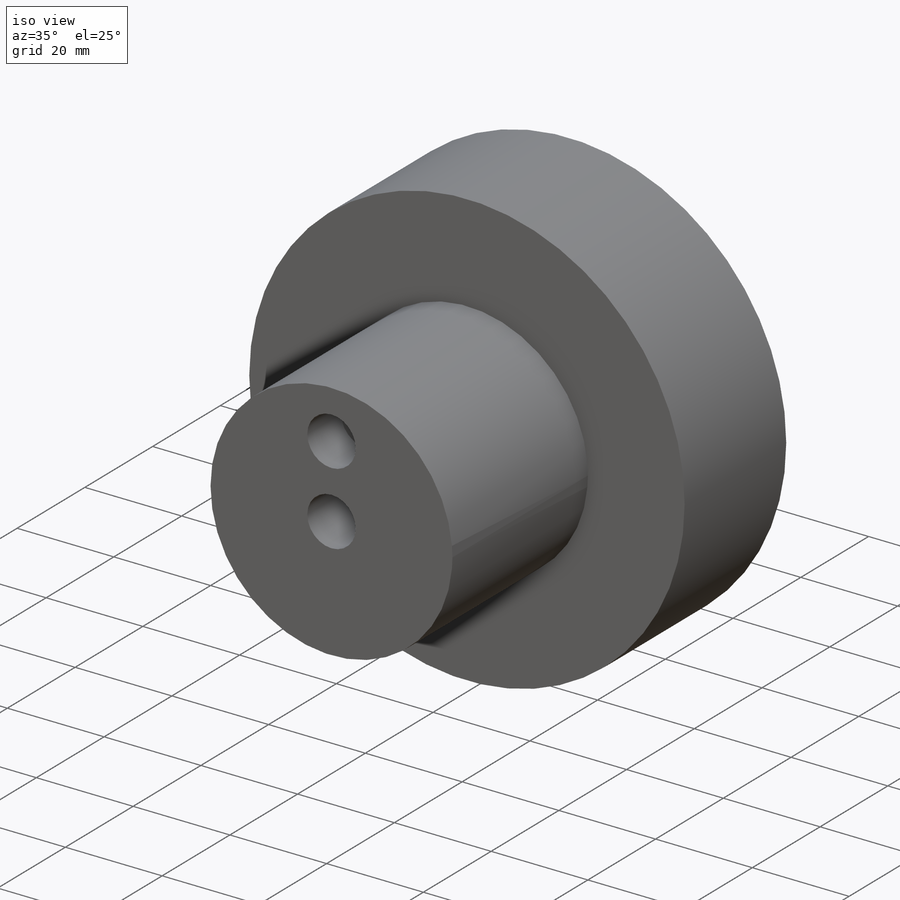
[diagram: iso view]
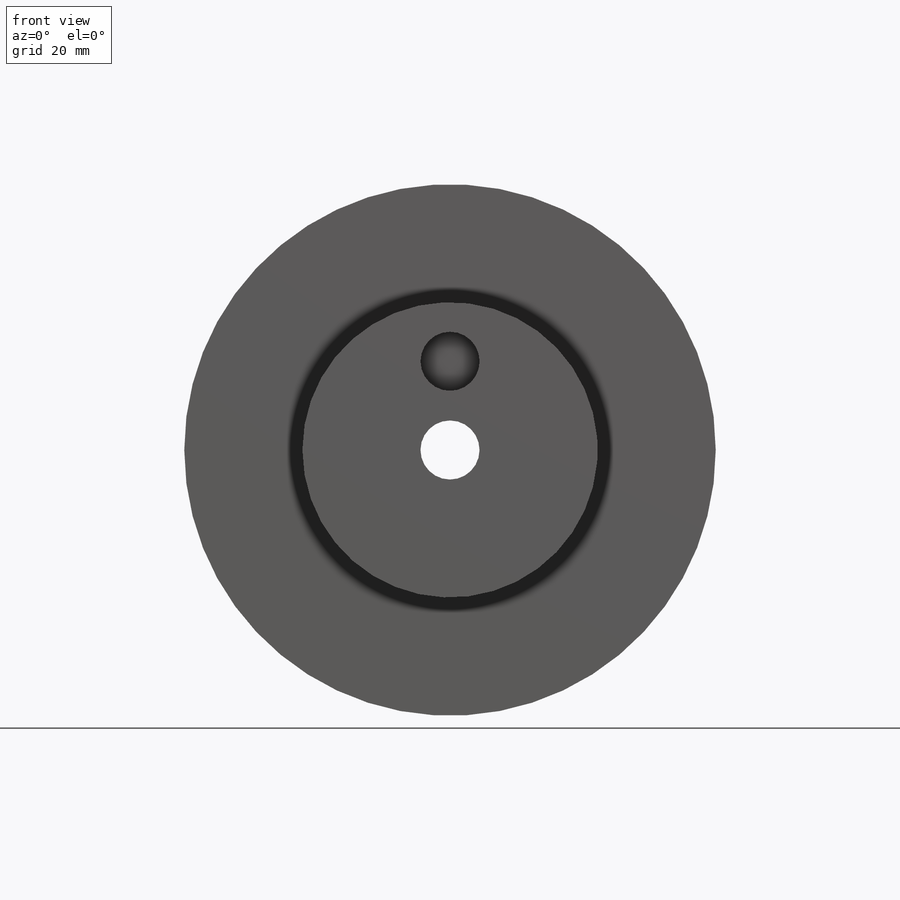
[diagram: front view]
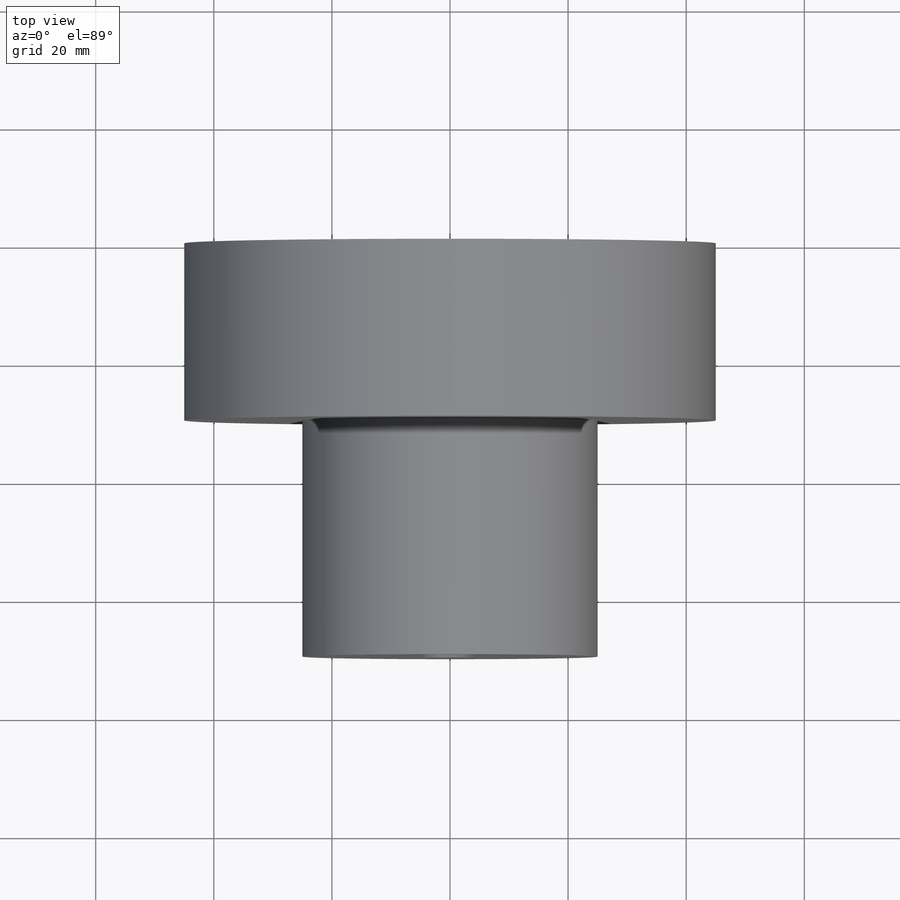
[diagram: top view]
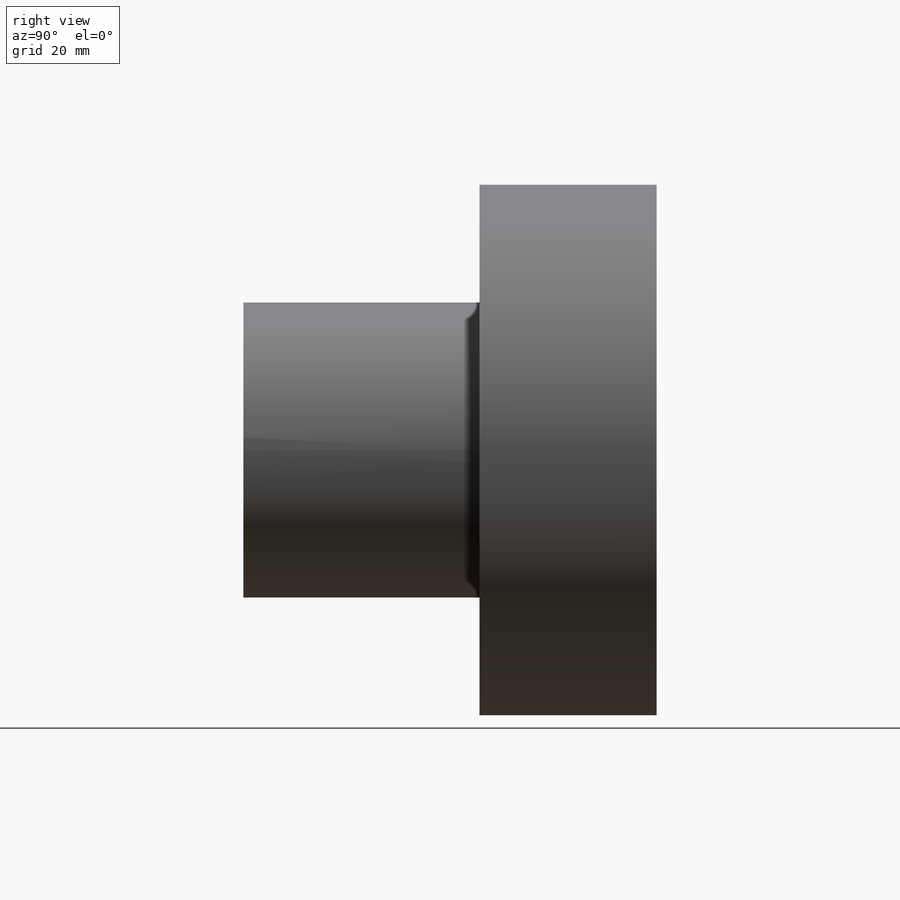
[diagram: right view]
SOLIDWORKS PART (.sldprt)
format: sldprt  version: not decoded by parser v0  size: 157,696 bytes
history: native  units: mm
features: sketch x5, plane x3, cut_extrude x3, extrude x2, material x1 (+9 scaffold rows collapsed)
feature tree (23):
  scaffold x9  (default folders/planes/origin — collapsed)
  material  "Matériau <non spécifié>"
  plane  "Plan de face"
  plane  "Plan de dessus"
  plane  "Plan de droite"
  sketch  "Esquisse1"  dims[D1=90.0mm]
  extrude  "Boss.-Extru.1"  Depth=30mm
  sketch  "Esquisse2"  dims[D1=50.0mm]
  extrude  "Boss.-Extru.2"  Depth=40mm
  sketch  "Esquisse3"  dims[D1=10.0mm]
  cut_extrude  "Enlèv. mat.-Extru.1"  [1 undecoded]
  sketch  "Esquisse6"  dims[D1=10.0mm D2=15.0mm]
  cut_extrude  "Enlèv. mat.-Extru.3"  Depth=10mm
  sketch  "Esquisse7"
  cut_extrude  "Enlèv. mat.-Extru.4"  Depth=10mm
decode coverage: 8 of 10 modeling features carry decoded parameters
note: 1 parameter value undecoded
note: suppression state not decoded; provenance and decode notes live in map.json
